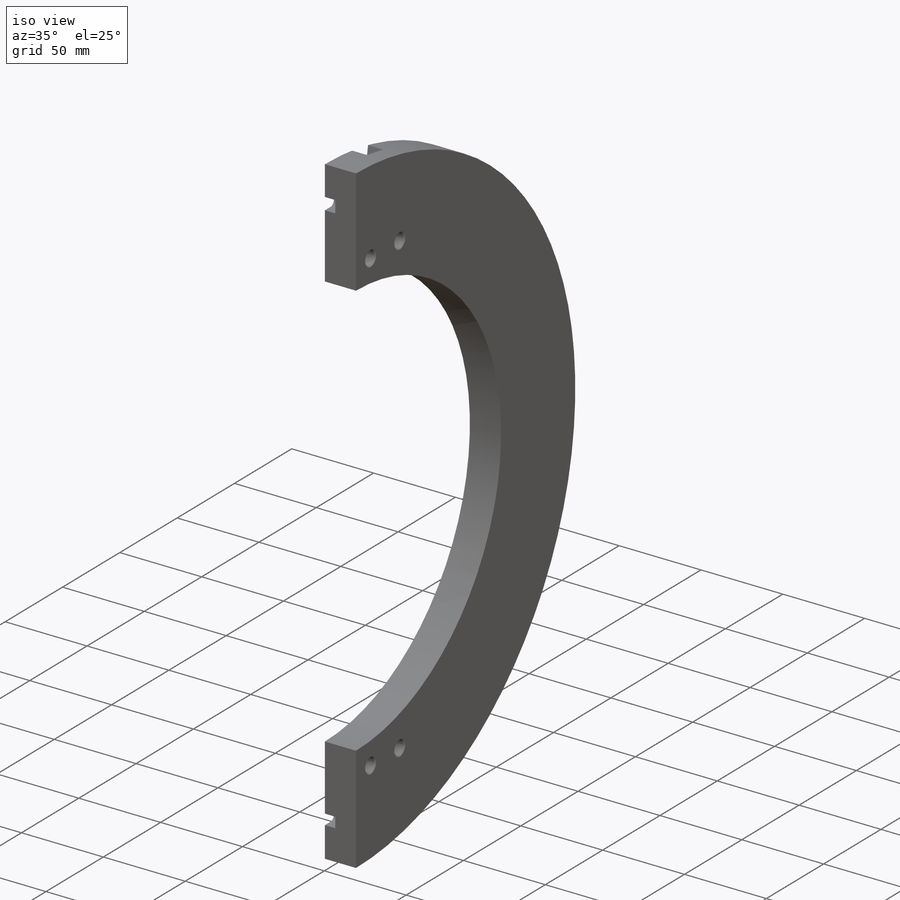
[diagram: iso view]
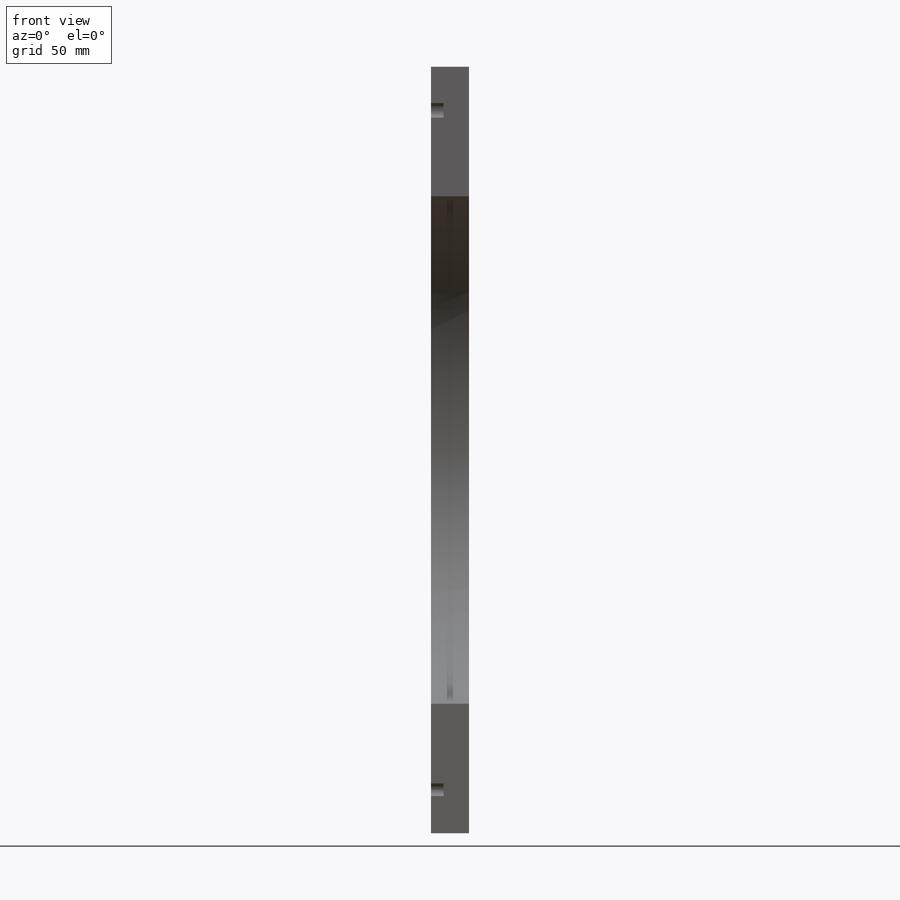
[diagram: front view]
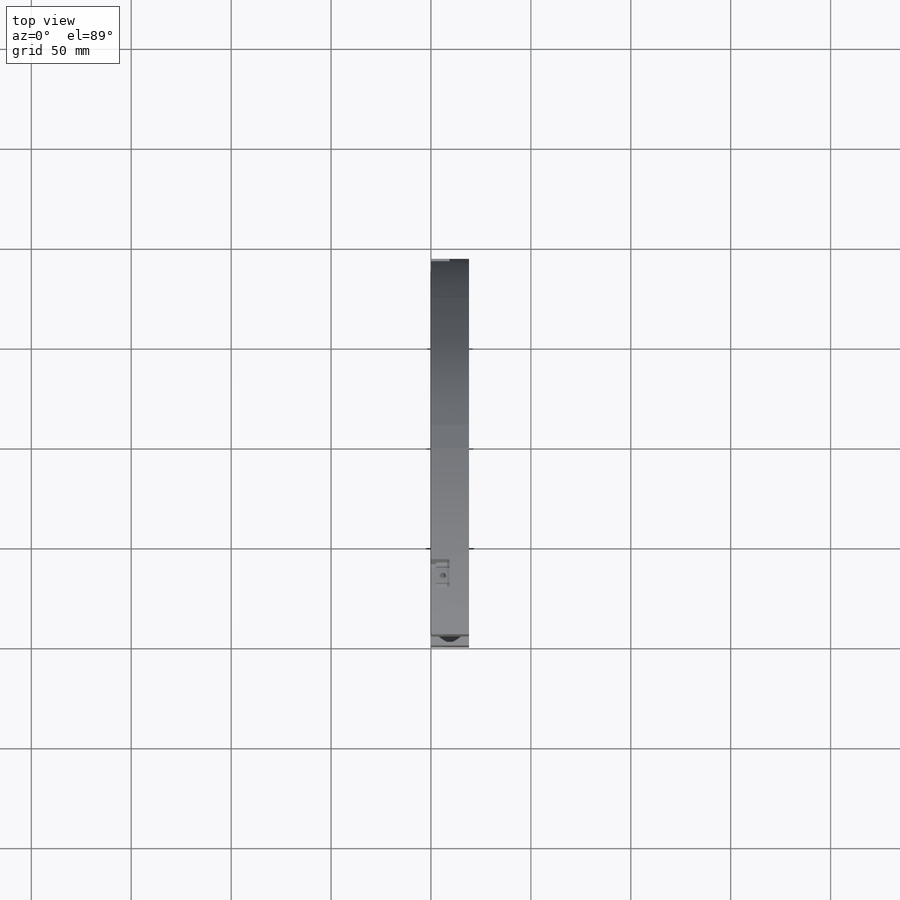
[diagram: top view]
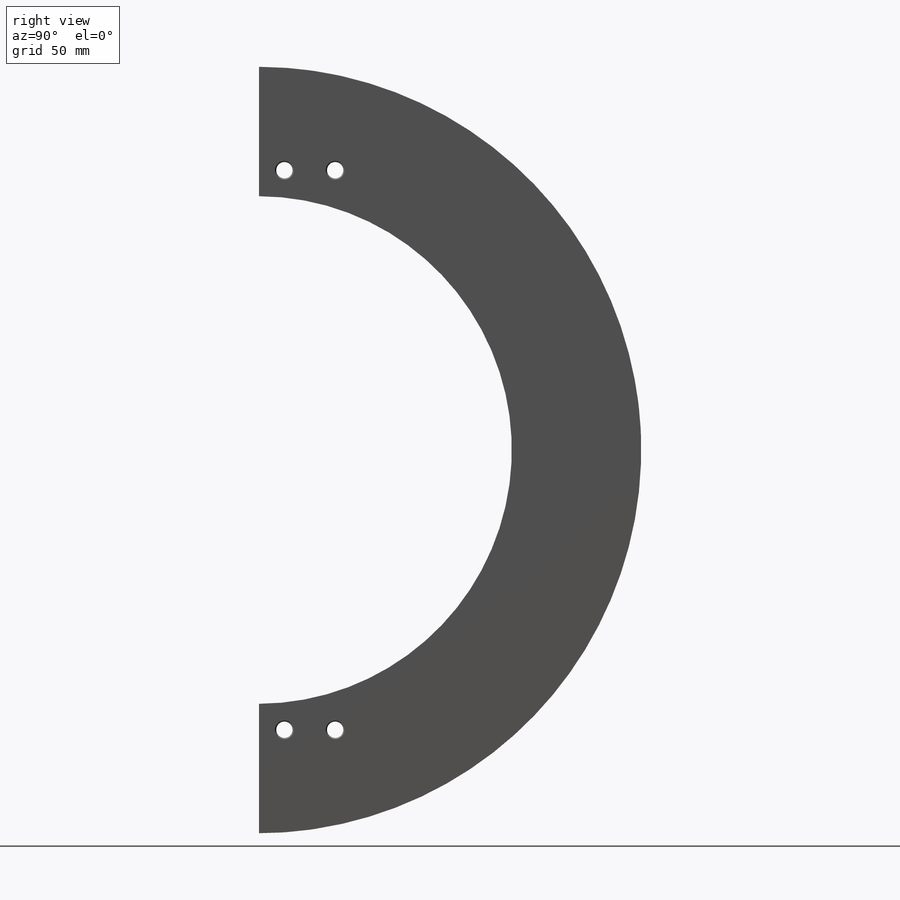
[diagram: right view]
SOLIDWORKS PART (.sldprt)
format: sldprt  version: not decoded by parser v0  size: 942,592 bytes
history: native  units: mm
features: sketch x21, cut_extrude x16, plane x3, thread x3, hole x2, fillet x2, material x1 + 2 further entries (+12 scaffold rows collapsed)
feature tree (62):
  scaffold x12  (default folders/planes/origin — collapsed)
  material  "Material <not specified>"
  plane  "Plane1"
  plane  "Plane2"
  plane  "Plane3"
  "Axis2"
  "Axis3"
  sketch  "Sketch1"  dims[c1.D9=3.0mm c1.D10=4.0mm c1.D2=6.7625mm c1.D7=4.5mm c1.D1=2.5mm c2.D2=~42.935967mm c3.D2=50.0deg c3.D3=~91.177867mm c4.D2=~100.269623mm c5.D2=~62.654091deg c5.D3=191.2625mm c5.D4=~104.165277mm c5.D5=125.0mm c5.D6=~60.834723mm c6.D4=188.0mm c6.D6=~46.36475mm c6.D1=~5.35288mm c6.D7=14.0mm c7.D1=6.5mm c7.D8=110.0mm c8.D1=~193.33025mm c8.D11=~14.60465mm c8.D6=~57.012213mm c9.D1=~14.686707mm c9.D5=117.5mm c9.D7=1.0mm c10.D5=~120.108474mm c10.D7=~74.340574mm c11.D7=~60.301597deg c11.D1=191.7625mm c11.D3=~57.012213mm c11.D4=~80.17119mm c12.D4=~61.150849deg c12.D5=~3.646559mm c12.D6=115.675mm c12.D7=188.0mm c12.D8=~7.106883mm c12.D2=1.5mm c12.D1=180.0deg c12.D3=64.76mm c13.D4=1.0mm c13.D7=0.0mm]
  sketch  "Sketch81"  dims[D1=430.0mm D2=0.5mm]
  cut_extrude  "Extrude1"  [1 undecoded]
  hole  "5/16 Clearance Hole1"  Diameter=8.2042mm Depth=19.05mm
  sketch  "Sketch83"  dims[D1=280.0mm D2=12.7mm D3=25.4mm]
  sketch  "Sketch82"  dims[hole-wizard template sketch: 54 standard entries collapsed; hole parameters above]
  sketch  "Sketch84"  dims[c1.D1=~184.999963mm c1.D2=~447.232396mm c2.D2=9.37deg c2.D3=180.0mm c3.D3=89.75deg c3.D4=~173.866649mm c4.D4=75.25deg c4.D5=14.1mm c4.D2=~447.232396mm c5.D2=9.37deg]
  cut_extrude  "Cut-Extrude1"  Depth=9.25mm
  sketch  "Sketch85"  dims[D2=3.175mm D1=0.0mm]
  cut_extrude  "Cut-Extrude2"  Depth=3mm
  sketch  "Sketch87"  dims[D1=6.75mm]
  cut_extrude  "Cut-Extrude3"  Depth=8mm
  sketch  "Sketch88"  dims[D2=3.175mm D1=0.0mm]
  cut_extrude  "Cut-Extrude4"  Depth=3mm
  sketch  "Sketch89"  dims[D2=3.175mm D1=0.0mm]
  cut_extrude  "Cut-Extrude5"  Depth=3mm
  sketch  "Sketch90"  dims[D1=6.75mm]
  cut_extrude  "Cut-Extrude6"  Depth=8mm
  sketch  "Sketch91"  dims[D1=6.75mm]
  cut_extrude  "Cut-Extrude7"  Depth=8mm
  sketch  "Sketch92"  dims[D1=3.175mm]
  cut_extrude  "Cut-Extrude8"  Depth=18mm
  sketch  "Sketch93"  dims[D1=1.0mm]
  cut_extrude  "Cut-Extrude9"  Depth=0.5mm
  sketch  "Sketch94"  dims[D1=3.175mm]
  cut_extrude  "Cut-Extrude10"  Depth=18mm
  sketch  "Sketch95"  dims[D1=1.0mm]
  cut_extrude  "Cut-Extrude11"  Depth=0.5mm
  sketch  "Sketch96"  dims[D1=3.175mm]
  cut_extrude  "Cut-Extrude12"  Depth=18mm
  sketch  "Sketch97"  dims[D1=1.0mm]
  cut_extrude  "Cut-Extrude13"  Depth=0.5mm
  hole  "#10-32 Tapped Hole1"  Diameter=4.0386mm Depth=12.02944mm
  sketch  "Sketch99"  dims[D1=6.35mm]
  sketch  "Sketch98"  dims[hole-wizard template sketch: 40 standard entries collapsed; hole parameters kept: c13.Tap Drill Depth=~12.02944mm c13.Near C'Sink Dia.=6.096mm c13.D4=~33.297463mm c13.Near C'Sink Angle=90.0deg c14.D5=~14.816244mm c14.Drill Angle=118.0deg]
  thread  "Hole Thread1"  Diameter=9.652mm  [1 undecoded]
  thread  "Hole Thread2"  Diameter=9.652mm  [1 undecoded]
  thread  "Hole Thread3"  Diameter=9.652mm  [1 undecoded]
  fillet  "Fillet1"  Radius=1.5875mm
  sketch  "Sketch100"  dims[D1=170.0mm D2=8.0mm D3=~6.35254mm]
  cut_extrude  "Cut-Extrude14"  Depth=6.35mm
  sketch  "Sketch101"  dims[D1=0.5mm]
  cut_extrude  "Cut-Extrude15"  [1 undecoded]
  fillet  "Fillet2"  Radius=3.175mm
decode coverage: 42 of 44 modeling features carry decoded parameters; 2 rows unclassified (native names shown)
note: ~ marks probable driven/reference dimensions
note: 5 parameter values undecoded
note: suppression state not decoded; provenance and decode notes live in map.json
